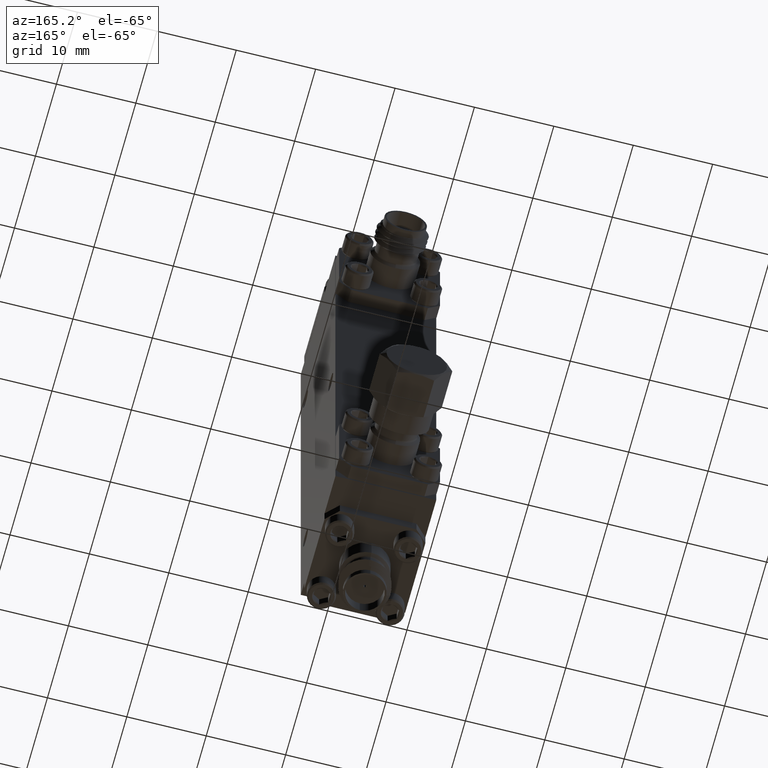
[diagram: clean part render]
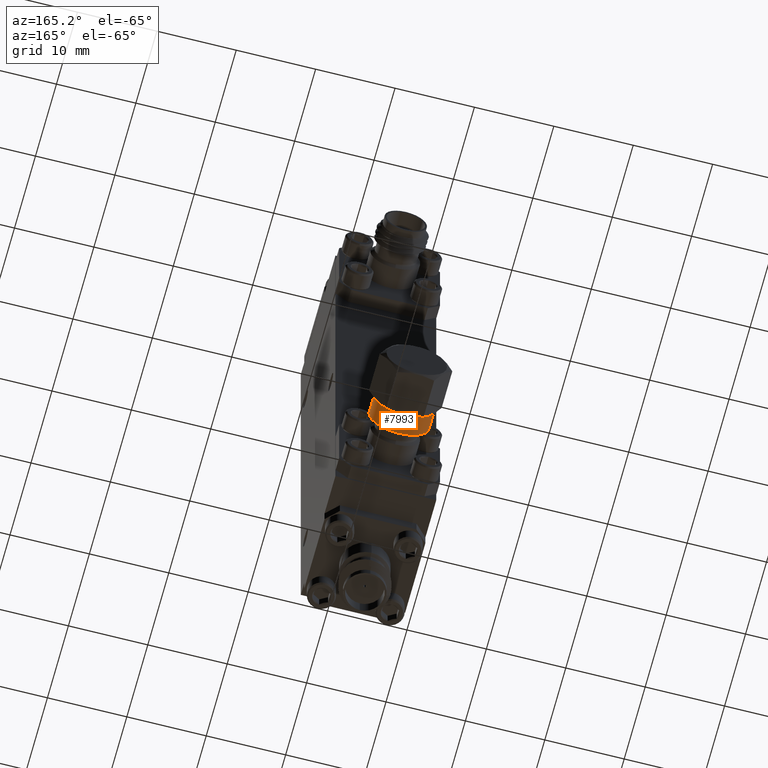
[diagram: same view with one face highlighted and labeled with its STEP entity id]
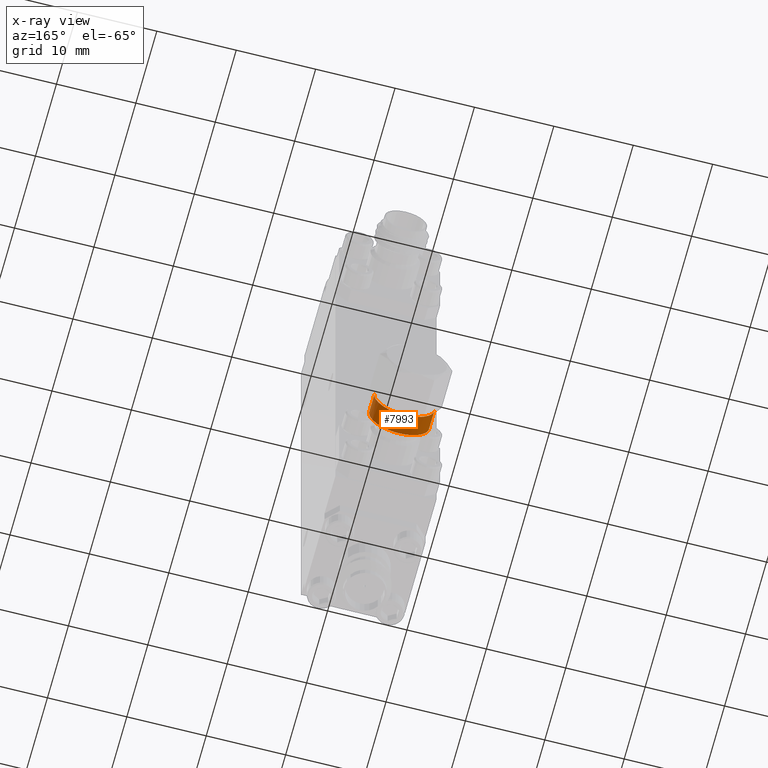
[diagram: x-ray of the same camera — body ghosted, the highlighted face saturated]
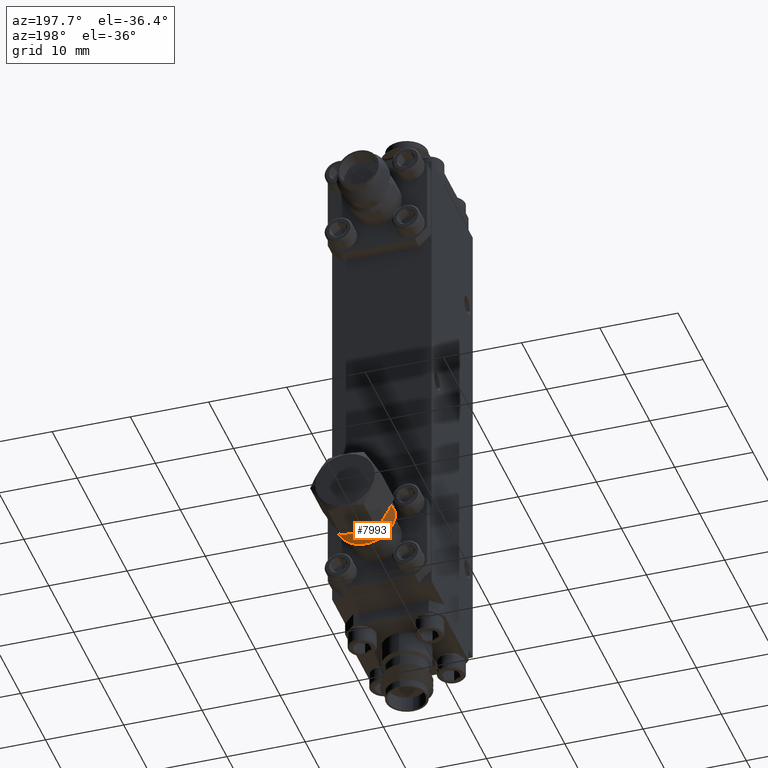
[diagram: same view with one face highlighted and labeled with its STEP entity id]
A machine part, auxiliary view. The second image highlights one B-rep face of the part: STEP entity #7993.
The next image is the same camera in x-ray: the body ghosted, the highlighted face saturated — about 0% of this face is hidden behind the body in this view.
A second angle (auxiliary view) of the same face is appended — the face is thin or edge-on in the first view.
In plain terms, the highlighted cylindrical surface (edge-blend (fillet) strip) has radius 3.8138 mm, axis along (0, 1, 0).
Its self-contained STEP definition (entity closure, byte-faithful):
#296 = CARTESIAN_POINT ( 'NONE',  ( -1.315844550745793000, 1.253792468998555100, -0.8479689816778638300 ) ) ;
#1068 = DIRECTION ( 'NONE',  ( 1.000000000000000000, 0.0000000000000000000, 0.0000000000000000000 ) ) ;
#1209 = VECTOR ( 'NONE', #18781, 39.37007874015748100 ) ;
#1329 = EDGE_CURVE ( 'NONE', #20195, #20681, #18990, .T. ) ;
#1992 = CARTESIAN_POINT ( 'NONE',  ( -1.355153728823834900, 1.253792468998554900, -0.8479689816778638300 ) ) ;
#2066 = CARTESIAN_POINT ( 'NONE',  ( -1.466698165996205500, 1.253792468998554700, -0.7734373715805541400 ) ) ;
#2136 = CARTESIAN_POINT ( 'NONE',  ( -1.215429163398726600, 1.253792468998555100, -0.7900931716820971400 ) ) ;
#2248 = EDGE_CURVE ( 'NONE', #19482, #20195, #2585, .T. ) ;
#2404 = DIRECTION ( 'NONE',  ( 2.200159989352222500E-017, 1.000000000000000000, 4.425604907990815700E-017 ) ) ;
#2585 = CIRCLE ( 'NONE', #6020, 0.1501500000000000300 ) ;
#2691 = FACE_OUTER_BOUND ( 'NONE', #17315, .T. ) ;
#2738 = CARTESIAN_POINT ( 'NONE',  ( -1.335499139784813700, 1.153792468998555000, -0.6978189816778638300 ) ) ;
#3860 = EDGE_CURVE ( 'NONE', #19482, #16164, #5790, .T. ) ;
#4228 = ORIENTED_EDGE ( 'NONE', *, *, #2248, .F. ) ;
#5289 = VECTOR ( 'NONE', #2404, 39.37007874015748100 ) ;
#5554 = CARTESIAN_POINT ( 'NONE',  ( -1.204300113573422100, 1.253792468998554900, -0.7734373715805542600 ) ) ;
#5624 = CARTESIAN_POINT ( 'NONE',  ( -1.455569116170900800, 1.253792468998554900, -0.7900931716820972500 ) ) ;
#5698 = CARTESIAN_POINT ( 'NONE',  ( -1.374800584621360000, 1.253792468998555100, -0.8440609790796116400 ) ) ;
#5790 = LINE ( 'NONE', #20280, #1209 ) ;
#6020 = AXIS2_PLACEMENT_3D ( 'NONE', #2738, #16501, #8035 ) ;
#6403 = CARTESIAN_POINT ( 'NONE',  ( -1.335499139784813700, 1.153792468998555000, -0.6978189816778638300 ) ) ;
#6669 = ORIENTED_EDGE ( 'NONE', *, *, #3860, .T. ) ;
#7212 = CARTESIAN_POINT ( 'NONE',  ( -1.296197694948267900, 1.253792468998554900, -0.8440609790796114200 ) ) ;
#7428 = CARTESIAN_POINT ( 'NONE',  ( -1.243224949780580100, 1.253792468998554900, -0.8178889580639504600 ) ) ;
#7500 = CARTESIAN_POINT ( 'NONE',  ( -1.485640781778395400, 1.253792468998554900, -0.6978189816778638300 ) ) ;
#7839 = DIRECTION ( 'NONE',  ( 2.200159989352222500E-017, 1.000000000000000000, 4.425604907990815700E-017 ) ) ;
#7993 = ADVANCED_FACE ( 'NONE', ( #2691 ), #13194, .T. ) ;
#8035 = DIRECTION ( 'NONE',  ( 1.000000000000000000, 0.0000000000000000000, 0.0000000000000000000 ) ) ;
#8845 = CARTESIAN_POINT ( 'NONE',  ( -1.411117529687504300, 1.253792468998554900, -0.8290180078892556100 ) ) ;
#8857 = AXIS2_PLACEMENT_3D ( 'NONE', #6403, #7839, #1068 ) ;
#9000 = CARTESIAN_POINT ( 'NONE',  ( -1.481741137186561400, 1.253792468998554900, -0.7371204265144096800 ) ) ;
#10149 = ORIENTED_EDGE ( 'NONE', *, *, #17023, .T. ) ;
#10644 = CARTESIAN_POINT ( 'NONE',  ( -1.259880749882123000, 1.253792468998555100, -0.8290180078892556100 ) ) ;
#12801 = B_SPLINE_CURVE_WITH_KNOTS ( 'NONE', 3,
 ( #7500, #17475, #9000, #2066, #5624, #13999, #8845, #5698, #1992, #296, #7212, #10644, #7428, #2136, #5554, #17549, #21071, #20851 ),
 .UNSPECIFIED., .F., .F.,
 ( 4, 2, 2, 2, 2, 2, 2, 2, 4 ),
 ( 0.5000000000000000000, 0.5625000000000000000, 0.6250000000000000000, 0.6875000000000000000, 0.7500000000000000000, 0.8125000000000000000, 0.8750000000000000000, 0.9375000000000000000, 1.000000000000000000 ),
 .UNSPECIFIED. ) ;
#13194 = CYLINDRICAL_SURFACE ( 'NONE', #8857, 0.1501500000000000300 ) ;
#13742 = CARTESIAN_POINT ( 'NONE',  ( -1.485649139784813700, 1.153792468998555000, -0.6978189816778638300 ) ) ;
#13999 = CARTESIAN_POINT ( 'NONE',  ( -1.427773329789046900, 1.253792468998555100, -0.8178889580639505700 ) ) ;
#15207 = CARTESIAN_POINT ( 'NONE',  ( -1.185357497791232200, 1.253792468998554900, -0.6978189816778638300 ) ) ;
#16164 = VERTEX_POINT ( 'NONE', #16536 ) ;
#16501 = DIRECTION ( 'NONE',  ( -2.200159989352222500E-017, -1.000000000000000000, -4.425604907990815700E-017 ) ) ;
#16536 = CARTESIAN_POINT ( 'NONE',  ( -1.485640781778395400, 1.253792468998554900, -0.6978189816778638300 ) ) ;
#17023 = EDGE_CURVE ( 'NONE', #16164, #20681, #12801, .T. ) ;
#17315 = EDGE_LOOP ( 'NONE', ( #4228, #6669, #10149, #18829 ) ) ;
#17475 = CARTESIAN_POINT ( 'NONE',  ( -1.485649139784813300, 1.253792468998554900, -0.7174735707168847800 ) ) ;
#17549 = CARTESIAN_POINT ( 'NONE',  ( -1.189257142383066200, 1.253792468998555100, -0.7371204265144095700 ) ) ;
#18781 = DIRECTION ( 'NONE',  ( 2.200159989352222500E-017, 1.000000000000000000, 4.425604907990815700E-017 ) ) ;
#18829 = ORIENTED_EDGE ( 'NONE', *, *, #1329, .F. ) ;
#18857 = CARTESIAN_POINT ( 'NONE',  ( -1.185349139784813700, 1.153792468998555000, -0.6978189816778638300 ) ) ;
#18990 = LINE ( 'NONE', #19709, #5289 ) ;
#19482 = VERTEX_POINT ( 'NONE', #13742 ) ;
#19709 = CARTESIAN_POINT ( 'NONE',  ( -1.185349139784813700, 1.153792468998555000, -0.6978189816778638300 ) ) ;
#20195 = VERTEX_POINT ( 'NONE', #18857 ) ;
#20280 = CARTESIAN_POINT ( 'NONE',  ( -1.485649139784813700, 1.153792468998555000, -0.6978189816778638300 ) ) ;
#20681 = VERTEX_POINT ( 'NONE', #15207 ) ;
#20851 = CARTESIAN_POINT ( 'NONE',  ( -1.185357497791232200, 1.253792468998554900, -0.6978189816778638300 ) ) ;
#21071 = CARTESIAN_POINT ( 'NONE',  ( -1.185349139784813900, 1.253792468998555100, -0.7174735707168850000 ) ) ;